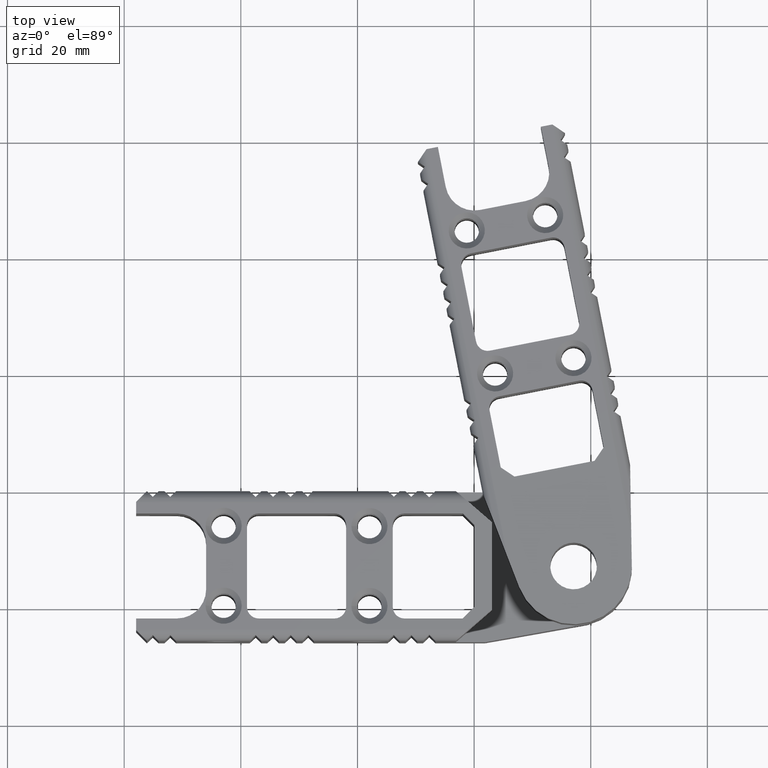
[diagram: clean part render]
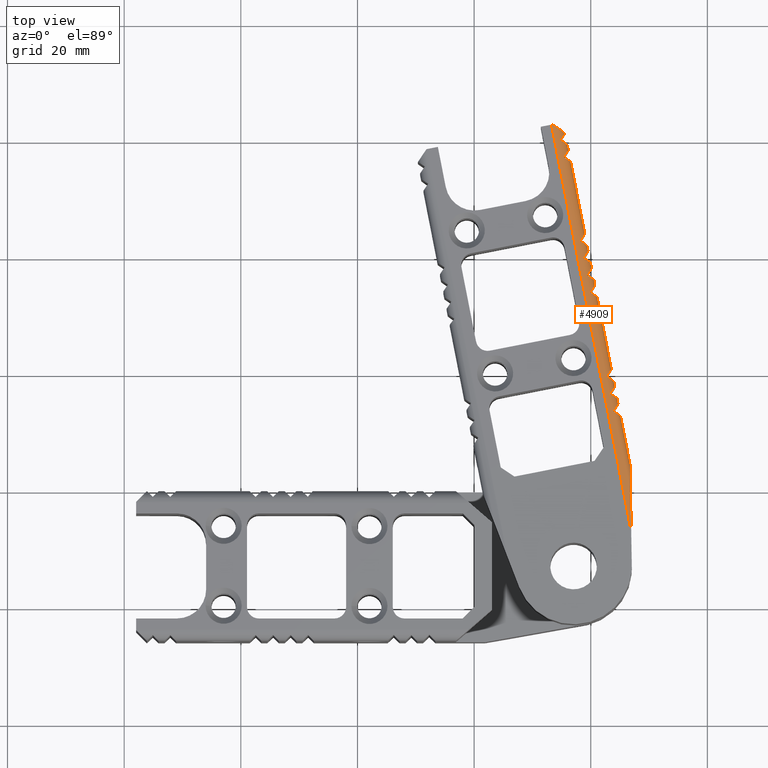
[diagram: same view with one face highlighted and labeled with its STEP entity id]
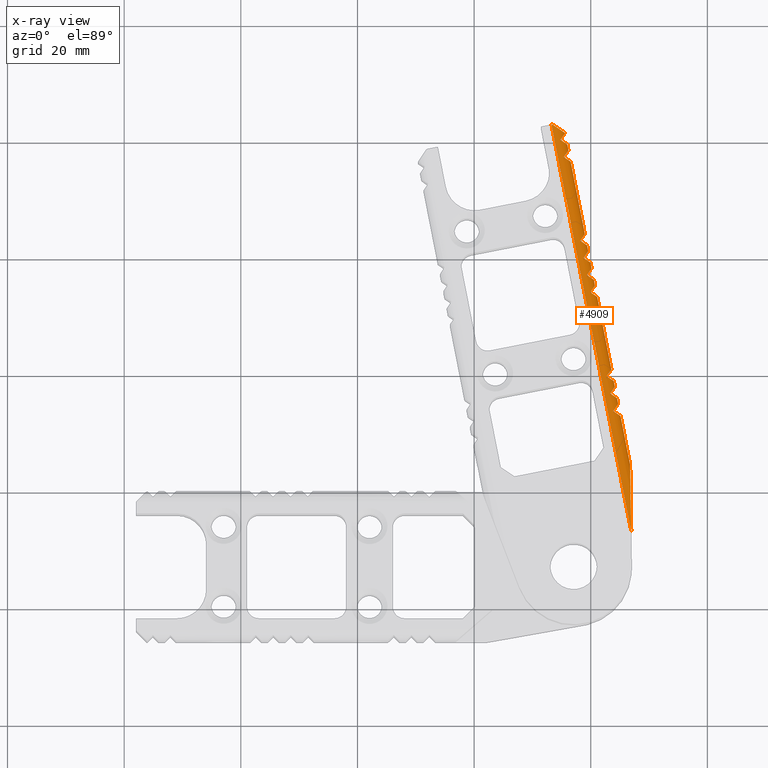
[diagram: x-ray of the same camera — body ghosted, the highlighted face saturated]
A machine part, top view. The second image highlights one B-rep face of the part: STEP entity #4909.
The next image is the same camera in x-ray: the body ghosted, the highlighted face saturated — about 0% of this face is hidden behind the body in this view.
In plain terms, the highlighted cylindrical surface (edge-blend (fillet) strip) has radius 2 mm, axis along (0.1925, -0.9813, -0).
Its self-contained STEP definition (entity closure, byte-faithful):
#351=ELLIPSE('',#5383,2.82842712474577,2.00000000000004);
#353=ELLIPSE('',#5386,2.82842712474289,1.99999999999843);
#355=ELLIPSE('',#5389,2.82842712474491,1.99999999999949);
#357=ELLIPSE('',#5393,2.82842712474419,1.9999999999996);
#359=ELLIPSE('',#5396,2.82842712474668,2.00000000000049);
#361=ELLIPSE('',#5400,2.82842712474433,1.99999999999863);
#363=ELLIPSE('',#5403,2.82842712474705,2.00000000000141);
#365=ELLIPSE('',#5407,2.82842712474432,1.99999999999891);
#367=ELLIPSE('',#5410,2.82842712474888,2.00000000000276);
#369=ELLIPSE('',#5414,2.82842712474664,2.00000000000054);
#371=ELLIPSE('',#5417,2.82842712474765,2.00000000000164);
#373=ELLIPSE('',#5421,2.82842712474683,2.00000000000051);
#375=ELLIPSE('',#5424,2.82842712474667,2.00000000000091);
#377=ELLIPSE('',#5428,2.82842712474575,2.00000000000034);
#379=ELLIPSE('',#5431,2.82842712474678,2.00000000000054);
#381=ELLIPSE('',#5435,2.82842712474576,1.99999999999972);
#383=ELLIPSE('',#5438,2.82842712474657,2.00000000000075);
#385=ELLIPSE('',#5442,2.82842712474589,2.);
#387=ELLIPSE('',#5445,2.8284271247452,1.99999999999953);
#427=ELLIPSE('',#5540,11.3763664383801,2.00000000000014);
#478=CYLINDRICAL_SURFACE('',#5545,2.);
#713=FACE_OUTER_BOUND('',#986,.T.);
#986=EDGE_LOOP('',(#4559,#4560,#4561,#4562,#4563,#4564,#4565,#4566,#4567,
#4568,#4569,#4570,#4571,#4572,#4573,#4574,#4575,#4576,#4577,#4578,#4579,
#4580,#4581,#4582,#4583,#4584,#4585,#4586,#4587,#4588,#4589));
#1234=LINE('',#8528,#1623);
#1262=LINE('',#8619,#1651);
#1267=LINE('',#8637,#1656);
#1272=LINE('',#8655,#1661);
#1277=LINE('',#8673,#1666);
#1282=LINE('',#8691,#1671);
#1287=LINE('',#8709,#1676);
#1292=LINE('',#8727,#1681);
#1297=LINE('',#8745,#1686);
#1302=LINE('',#8763,#1691);
#1623=VECTOR('',#6597,1000.);
#1651=VECTOR('',#6679,1000.);
#1656=VECTOR('',#6698,1000.);
#1661=VECTOR('',#6717,1000.);
#1666=VECTOR('',#6736,1000.);
#1671=VECTOR('',#6755,1000.);
#1676=VECTOR('',#6774,1000.);
#1681=VECTOR('',#6793,1000.);
#1686=VECTOR('',#6812,1000.);
#1691=VECTOR('',#6831,1000.);
#1912=CIRCLE('',#5380,2.);
#2270=VERTEX_POINT('',#8525);
#2271=VERTEX_POINT('',#8527);
#2299=VERTEX_POINT('',#8594);
#2301=VERTEX_POINT('',#8600);
#2303=VERTEX_POINT('',#8606);
#2305=VERTEX_POINT('',#8612);
#2307=VERTEX_POINT('',#8618);
#2309=VERTEX_POINT('',#8624);
#2311=VERTEX_POINT('',#8630);
#2313=VERTEX_POINT('',#8636);
#2315=VERTEX_POINT('',#8642);
#2317=VERTEX_POINT('',#8648);
#2319=VERTEX_POINT('',#8654);
#2321=VERTEX_POINT('',#8660);
#2323=VERTEX_POINT('',#8666);
#2325=VERTEX_POINT('',#8672);
#2327=VERTEX_POINT('',#8678);
#2329=VERTEX_POINT('',#8684);
#2331=VERTEX_POINT('',#8690);
#2333=VERTEX_POINT('',#8696);
#2335=VERTEX_POINT('',#8702);
#2337=VERTEX_POINT('',#8708);
#2339=VERTEX_POINT('',#8714);
#2341=VERTEX_POINT('',#8720);
#2343=VERTEX_POINT('',#8726);
#2345=VERTEX_POINT('',#8732);
#2347=VERTEX_POINT('',#8738);
#2349=VERTEX_POINT('',#8744);
#2351=VERTEX_POINT('',#8750);
#2353=VERTEX_POINT('',#8756);
#2355=VERTEX_POINT('',#8762);
#2925=EDGE_CURVE('',#2270,#2271,#1234,.T.);
#2959=EDGE_CURVE('',#2271,#2299,#1912,.T.);
#2962=EDGE_CURVE('',#2299,#2301,#351,.T.);
#2965=EDGE_CURVE('',#2301,#2303,#353,.T.);
#2968=EDGE_CURVE('',#2303,#2305,#355,.T.);
#2971=EDGE_CURVE('',#2305,#2307,#1262,.T.);
#2974=EDGE_CURVE('',#2307,#2309,#357,.T.);
#2977=EDGE_CURVE('',#2309,#2311,#359,.T.);
#2980=EDGE_CURVE('',#2311,#2313,#1267,.T.);
#2983=EDGE_CURVE('',#2313,#2315,#361,.T.);
#2986=EDGE_CURVE('',#2315,#2317,#363,.T.);
#2989=EDGE_CURVE('',#2317,#2319,#1272,.T.);
#2992=EDGE_CURVE('',#2319,#2321,#365,.T.);
#2995=EDGE_CURVE('',#2321,#2323,#367,.T.);
#2998=EDGE_CURVE('',#2323,#2325,#1277,.T.);
#3001=EDGE_CURVE('',#2325,#2327,#369,.T.);
#3004=EDGE_CURVE('',#2327,#2329,#371,.T.);
#3007=EDGE_CURVE('',#2329,#2331,#1282,.T.);
#3010=EDGE_CURVE('',#2331,#2333,#373,.T.);
#3013=EDGE_CURVE('',#2333,#2335,#375,.T.);
#3016=EDGE_CURVE('',#2335,#2337,#1287,.T.);
#3019=EDGE_CURVE('',#2337,#2339,#377,.T.);
#3022=EDGE_CURVE('',#2339,#2341,#379,.T.);
#3025=EDGE_CURVE('',#2341,#2343,#1292,.T.);
#3028=EDGE_CURVE('',#2343,#2345,#381,.T.);
#3031=EDGE_CURVE('',#2345,#2347,#383,.T.);
#3034=EDGE_CURVE('',#2347,#2349,#1297,.T.);
#3037=EDGE_CURVE('',#2349,#2351,#385,.T.);
#3040=EDGE_CURVE('',#2351,#2353,#387,.T.);
#3043=EDGE_CURVE('',#2353,#2355,#1302,.T.);
#3158=EDGE_CURVE('',#2355,#2270,#427,.T.);
#4559=ORIENTED_EDGE('',*,*,#2959,.F.);
#4560=ORIENTED_EDGE('',*,*,#2925,.F.);
#4561=ORIENTED_EDGE('',*,*,#3158,.F.);
#4562=ORIENTED_EDGE('',*,*,#3043,.F.);
#4563=ORIENTED_EDGE('',*,*,#3040,.F.);
#4564=ORIENTED_EDGE('',*,*,#3037,.F.);
#4565=ORIENTED_EDGE('',*,*,#3034,.F.);
#4566=ORIENTED_EDGE('',*,*,#3031,.F.);
#4567=ORIENTED_EDGE('',*,*,#3028,.F.);
#4568=ORIENTED_EDGE('',*,*,#3025,.F.);
#4569=ORIENTED_EDGE('',*,*,#3022,.F.);
#4570=ORIENTED_EDGE('',*,*,#3019,.F.);
#4571=ORIENTED_EDGE('',*,*,#3016,.F.);
#4572=ORIENTED_EDGE('',*,*,#3013,.F.);
#4573=ORIENTED_EDGE('',*,*,#3010,.F.);
#4574=ORIENTED_EDGE('',*,*,#3007,.F.);
#4575=ORIENTED_EDGE('',*,*,#3004,.F.);
#4576=ORIENTED_EDGE('',*,*,#3001,.F.);
#4577=ORIENTED_EDGE('',*,*,#2998,.F.);
#4578=ORIENTED_EDGE('',*,*,#2995,.F.);
#4579=ORIENTED_EDGE('',*,*,#2992,.F.);
#4580=ORIENTED_EDGE('',*,*,#2989,.F.);
#4581=ORIENTED_EDGE('',*,*,#2986,.F.);
#4582=ORIENTED_EDGE('',*,*,#2983,.F.);
#4583=ORIENTED_EDGE('',*,*,#2980,.F.);
#4584=ORIENTED_EDGE('',*,*,#2977,.F.);
#4585=ORIENTED_EDGE('',*,*,#2974,.F.);
#4586=ORIENTED_EDGE('',*,*,#2971,.F.);
#4587=ORIENTED_EDGE('',*,*,#2968,.F.);
#4588=ORIENTED_EDGE('',*,*,#2965,.F.);
#4589=ORIENTED_EDGE('',*,*,#2962,.F.);
#4909=ADVANCED_FACE('',(#713),#478,.T.);
#5380=AXIS2_PLACEMENT_3D('',#8595,#6651,#6652);
#5383=AXIS2_PLACEMENT_3D('',#8601,#6658,#6659);
#5386=AXIS2_PLACEMENT_3D('',#8607,#6665,#6666);
#5389=AXIS2_PLACEMENT_3D('',#8613,#6672,#6673);
#5393=AXIS2_PLACEMENT_3D('',#8625,#6684,#6685);
#5396=AXIS2_PLACEMENT_3D('',#8631,#6691,#6692);
#5400=AXIS2_PLACEMENT_3D('',#8643,#6703,#6704);
#5403=AXIS2_PLACEMENT_3D('',#8649,#6710,#6711);
#5407=AXIS2_PLACEMENT_3D('',#8661,#6722,#6723);
#5410=AXIS2_PLACEMENT_3D('',#8667,#6729,#6730);
#5414=AXIS2_PLACEMENT_3D('',#8679,#6741,#6742);
#5417=AXIS2_PLACEMENT_3D('',#8685,#6748,#6749);
#5421=AXIS2_PLACEMENT_3D('',#8697,#6760,#6761);
#5424=AXIS2_PLACEMENT_3D('',#8703,#6767,#6768);
#5428=AXIS2_PLACEMENT_3D('',#8715,#6779,#6780);
#5431=AXIS2_PLACEMENT_3D('',#8721,#6786,#6787);
#5435=AXIS2_PLACEMENT_3D('',#8733,#6798,#6799);
#5438=AXIS2_PLACEMENT_3D('',#8739,#6805,#6806);
#5442=AXIS2_PLACEMENT_3D('',#8751,#6817,#6818);
#5445=AXIS2_PLACEMENT_3D('',#8757,#6824,#6825);
#5540=AXIS2_PLACEMENT_3D('',#8990,#7089,#7090);
#5545=AXIS2_PLACEMENT_3D('',#8997,#7101,#7102);
#6597=DIRECTION('',(-1.,-3.33066907387546E-16,5.05620425241281E-17));
#6651=DIRECTION('center_axis',(-1.,-3.33066907387546E-16,5.05620425241281E-17));
#6652=DIRECTION('ref_axis',(-5.05620425241281E-17,-1.68405431347089E-32,
-1.));
#6658=DIRECTION('center_axis',(-0.707106781186472,-0.707106781186624,-1.40972802730518E-13));
#6659=DIRECTION('ref_axis',(0.707106781186624,-0.707106781186471,-2.8513553145534E-13));
#6665=DIRECTION('center_axis',(0.707106781186345,-0.707106781186751,3.76700005346863E-14));
#6666=DIRECTION('ref_axis',(0.707106781186751,0.707106781186345,4.27235831549895E-13));
#6672=DIRECTION('center_axis',(-0.707106781186463,-0.707106781186633,-3.70353429170137E-13));
#6673=DIRECTION('ref_axis',(0.707106781186633,-0.707106781186463,-3.15643516333563E-13));
#6679=DIRECTION('',(1.,3.33066907387546E-16,-5.05620425241281E-17));
#6684=DIRECTION('center_axis',(0.707106781186456,-0.707106781186639,7.80014684984423E-14));
#6685=DIRECTION('ref_axis',(0.707106781186639,0.707106781186456,7.51637115829726E-13));
#6691=DIRECTION('center_axis',(-0.707106781186936,-0.707106781186159,1.5764076310724E-14));
#6692=DIRECTION('ref_axis',(0.707106781186159,-0.707106781186936,-8.73721501871556E-13));
#6698=DIRECTION('',(1.,3.33066907387546E-16,-5.05620425241281E-17));
#6703=DIRECTION('center_axis',(0.707106781186265,-0.70710678118683,-3.26695126919577E-13));
#6704=DIRECTION('ref_axis',(0.70710678118683,0.707106781186265,5.24215892041973E-13));
#6710=DIRECTION('center_axis',(-0.707106781186179,-0.707106781186916,-4.27677343027029E-13));
#6711=DIRECTION('ref_axis',(0.707106781186916,-0.707106781186179,-1.616911598581E-12));
#6717=DIRECTION('',(1.,3.33066907387546E-16,-5.05620425241281E-17));
#6722=DIRECTION('center_axis',(0.707106781186736,-0.707106781186359,1.0333659114064E-13));
#6723=DIRECTION('ref_axis',(0.707106781186359,0.707106781186736,5.67566189744974E-13));
#6729=DIRECTION('center_axis',(-0.707106781186684,-0.707106781186411,1.58254947898521E-13));
#6730=DIRECTION('ref_axis',(0.707106781186411,-0.707106781186684,-2.01036380364901E-12));
#6736=DIRECTION('',(1.,3.33066907387546E-16,-5.05620425241281E-17));
#6741=DIRECTION('center_axis',(0.707106781186578,-0.707106781186517,1.95054853312294E-13));
#6742=DIRECTION('ref_axis',(0.707106781186517,0.707106781186578,6.59088623773402E-14));
#6748=DIRECTION('center_axis',(-0.707106781186258,-0.707106781186837,-4.03314679637782E-13));
#6749=DIRECTION('ref_axis',(0.707106781186837,-0.707106781186258,-1.65804671816502E-12));
#6755=DIRECTION('',(1.,3.33066907387546E-16,-5.05620425241281E-17));
#6760=DIRECTION('center_axis',(0.707106781186324,-0.707106781186771,-3.0284428419006E-13));
#6761=DIRECTION('ref_axis',(0.707106781186771,0.707106781186324,4.23822542152125E-13));
#6767=DIRECTION('center_axis',(-0.707106781186381,-0.707106781186714,-2.83343917065617E-13));
#6768=DIRECTION('ref_axis',(0.707106781186714,-0.707106781186381,-7.09256169912172E-14));
#6774=DIRECTION('',(1.,3.33066907387546E-16,-5.05620425241281E-17));
#6779=DIRECTION('center_axis',(0.707106781186558,-0.707106781186537,1.4778345470649E-13));
#6780=DIRECTION('ref_axis',(0.707106781186537,0.707106781186558,3.53199128351933E-14));
#6786=DIRECTION('center_axis',(-0.707106781186538,-0.707106781186557,-7.8470862505883E-14));
#6787=DIRECTION('ref_axis',(0.707106781186557,-0.707106781186538,3.52129271632016E-13));
#6793=DIRECTION('',(1.,3.33066907387546E-16,-5.05620425241281E-17));
#6798=DIRECTION('center_axis',(0.707106781187022,-0.707106781186073,3.89393157701152E-13));
#6799=DIRECTION('ref_axis',(0.707106781186073,0.707106781187022,1.21232695438479E-13));
#6805=DIRECTION('center_axis',(-0.70710678118663,-0.707106781186465,2.76383156097193E-14));
#6806=DIRECTION('ref_axis',(0.707106781186465,-0.70710678118663,-1.39059963408636E-13));
#6812=DIRECTION('',(1.,3.33066907387546E-16,-5.05620425241281E-17));
#6817=DIRECTION('center_axis',(0.707106781186653,-0.707106781186442,3.7912661290134E-14));
#6818=DIRECTION('ref_axis',(0.707106781186442,0.707106781186653,4.31413578215668E-13));
#6824=DIRECTION('center_axis',(-0.70710678118636,-0.707106781186735,-1.58982355740775E-13));
#6825=DIRECTION('ref_axis',(0.707106781186735,-0.70710678118636,-3.8313476126887E-13));
#6831=DIRECTION('',(1.,3.33066907387546E-16,-5.05620425241281E-17));
#7089=DIRECTION('center_axis',(0.175803057226862,-0.984425357794937,1.79443642504586E-14));
#7090=DIRECTION('ref_axis',(0.984425357794936,0.175803057226862,-9.94079501203206E-15));
#7101=DIRECTION('center_axis',(1.,3.33066907387546E-16,-5.05620425241281E-17));
#7102=DIRECTION('ref_axis',(-5.05620425241281E-17,-1.68405431347089E-32,
-1.));
#8525=CARTESIAN_POINT('',(22.0072182984557,5.84589766430688,-8.88178419700125E-13));
#8527=CARTESIAN_POINT('',(-49.0143302673367,5.84589766430688,0.));
#8528=CARTESIAN_POINT('',(-42.0143302673364,5.84589766430688,0.));
#8594=CARTESIAN_POINT('',(-49.0143302673367,5.69589766430678,0.00563293248223573));
#8595=CARTESIAN_POINT('Origin',(-49.0143302673367,5.84589766430688,1.99999999999978));
#8600=CARTESIAN_POINT('',(-47.1643302673368,3.84589766430687,1.99999999999978));
#8601=CARTESIAN_POINT('Origin',(-49.1643302673367,5.84589766430636,2.00000000000023));
#8606=CARTESIAN_POINT('',(-46.1643302673363,4.84589766430676,0.267949192431338));
#8607=CARTESIAN_POINT('Origin',(-45.1643302673386,5.84589766430397,1.99999999999996));
#8612=CARTESIAN_POINT('',(-45.1643302673368,3.84589766430665,1.99999999999978));
#8613=CARTESIAN_POINT('Origin',(-47.1643302673361,5.8458976643055,2.00000000000013));
#8618=CARTESIAN_POINT('',(-44.1643302673369,3.84589766430687,2.00000000000022));
#8619=CARTESIAN_POINT('',(-44.6643302673367,3.84589766430699,1.99999999999978));
#8624=CARTESIAN_POINT('',(-43.1643302673362,4.8458976643071,0.267949192431338));
#8625=CARTESIAN_POINT('Origin',(-42.164330267338,5.8458976643052,2.00000000000106));
#8630=CARTESIAN_POINT('',(-42.1643302673368,3.84589766430665,1.99999999999978));
#8631=CARTESIAN_POINT('Origin',(-44.1643302673361,5.8458976643081,2.00000000000111));
#8636=CARTESIAN_POINT('',(-29.5372969378548,3.84589766430687,2.00000000000022));
#8637=CARTESIAN_POINT('',(-42.1643302673368,3.84589766430665,1.99999999999978));
#8642=CARTESIAN_POINT('',(-28.5372969378549,4.84589766430676,0.267949192431338));
#8643=CARTESIAN_POINT('Origin',(-27.5372969378553,5.84589766430476,1.99999999999972));
#8648=CARTESIAN_POINT('',(-27.5372969378548,3.84589766430665,2.00000000000022));
#8649=CARTESIAN_POINT('Origin',(-29.5372969378565,5.84589766430622,2.00000000000246));
#8654=CARTESIAN_POINT('',(-26.5372969378548,3.84589766430687,2.00000000000022));
#8655=CARTESIAN_POINT('',(-27.0372969378547,3.84589766430687,1.99999999999978));
#8660=CARTESIAN_POINT('',(-25.537296937855,4.84589766430699,0.267949192431338));
#8661=CARTESIAN_POINT('Origin',(-24.5372969378566,5.84589766430609,2.00000000000004));
#8666=CARTESIAN_POINT('',(-24.5372969378547,3.84589766430676,2.00000000000022));
#8667=CARTESIAN_POINT('Origin',(-26.5372969378563,5.84589766430905,2.00000000000361));
#8672=CARTESIAN_POINT('',(-23.5372969378551,3.84589766430687,2.00000000000022));
#8673=CARTESIAN_POINT('',(-24.0372969378553,3.84589766430687,1.99999999999978));
#8678=CARTESIAN_POINT('',(-22.5372969378548,4.84589766430676,0.267949192431338));
#8679=CARTESIAN_POINT('Origin',(-21.5372969378548,5.84589766430728,2.00000000000069));
#8684=CARTESIAN_POINT('',(-21.5372969378548,3.84589766430665,2.00000000000022));
#8685=CARTESIAN_POINT('Origin',(-23.5372969378567,5.84589766430686,2.00000000000253));
#8690=CARTESIAN_POINT('',(-20.5372969378551,3.84589766430665,2.00000000000022));
#8691=CARTESIAN_POINT('',(-21.0372969378547,3.84589766430687,1.99999999999978));
#8696=CARTESIAN_POINT('',(-19.5372969378548,4.84589766430699,0.267949192431338));
#8697=CARTESIAN_POINT('Origin',(-18.537296937854,5.84589766430647,2.00000000000099));
#8702=CARTESIAN_POINT('',(-18.5372969378547,3.84589766430665,2.00000000000022));
#8703=CARTESIAN_POINT('Origin',(-20.5372969378555,5.84589766430652,2.00000000000108));
#8708=CARTESIAN_POINT('',(-5.88589148513979,3.84589766430699,2.00000000000022));
#8709=CARTESIAN_POINT('',(-12.2115942114978,3.84589766430687,2.00000000000022));
#8714=CARTESIAN_POINT('',(-4.86264671982256,4.86914242962388,0.254735203036649));
#8715=CARTESIAN_POINT('Origin',(-3.88589148514014,5.8458976643067,2.0000000000004));
#8720=CARTESIAN_POINT('',(-3.83940195450549,3.84589766430665,2.00000000000022));
#8721=CARTESIAN_POINT('Origin',(-5.83940195450594,5.84589766430704,2.00000000000015));
#8726=CARTESIAN_POINT('',(-2.8394019545056,3.84589766430687,1.99999999999978));
#8727=CARTESIAN_POINT('',(-3.33940195450544,3.84589766430687,2.00000000000022));
#8732=CARTESIAN_POINT('',(-1.83940195450566,4.84589766430721,0.267949192430894));
#8733=CARTESIAN_POINT('Origin',(-0.839401954507252,5.84589766430791,1.99999999999978));
#8738=CARTESIAN_POINT('',(-0.839401954505492,3.84589766430687,1.99999999999978));
#8739=CARTESIAN_POINT('Origin',(-2.83940195450553,5.84589766430738,2.00000000000058));
#8744=CARTESIAN_POINT('',(0.160598045494453,3.84589766430687,1.99999999999978));
#8745=CARTESIAN_POINT('',(-0.339401954505547,3.84589766430665,1.99999999999978));
#8750=CARTESIAN_POINT('',(1.22312034458977,4.90841996340241,0.23332641376328));
#8751=CARTESIAN_POINT('Origin',(2.16059804549394,5.84589766430696,2.00000000000039));
#8756=CARTESIAN_POINT('',(2.28564264368536,3.84589766430699,1.99999999999978));
#8757=CARTESIAN_POINT('Origin',(0.28564264368553,5.84589766430575,2.00000000000013));
#8762=CARTESIAN_POINT('',(10.8080346969485,3.84589766430687,1.99999999999978));
#8763=CARTESIAN_POINT('',(6.54683867031702,3.84589766430687,1.99999999999978));
#8990=CARTESIAN_POINT('Origin',(22.0072182984571,5.84589766430716,1.99999999999925));
#8997=CARTESIAN_POINT('Origin',(-42.1643302673367,5.84589766430688,1.99999999999978));